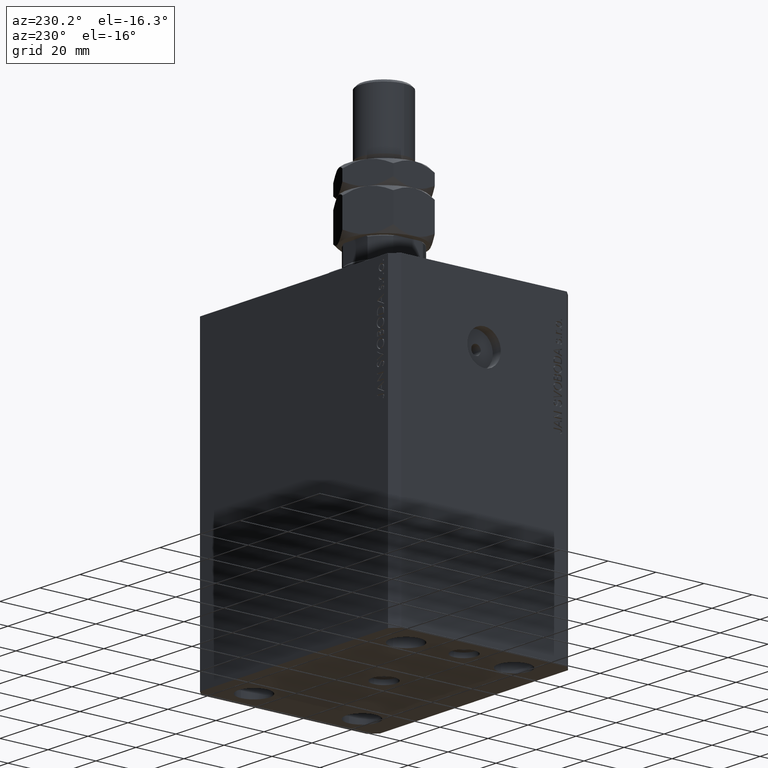
[diagram: clean part render]
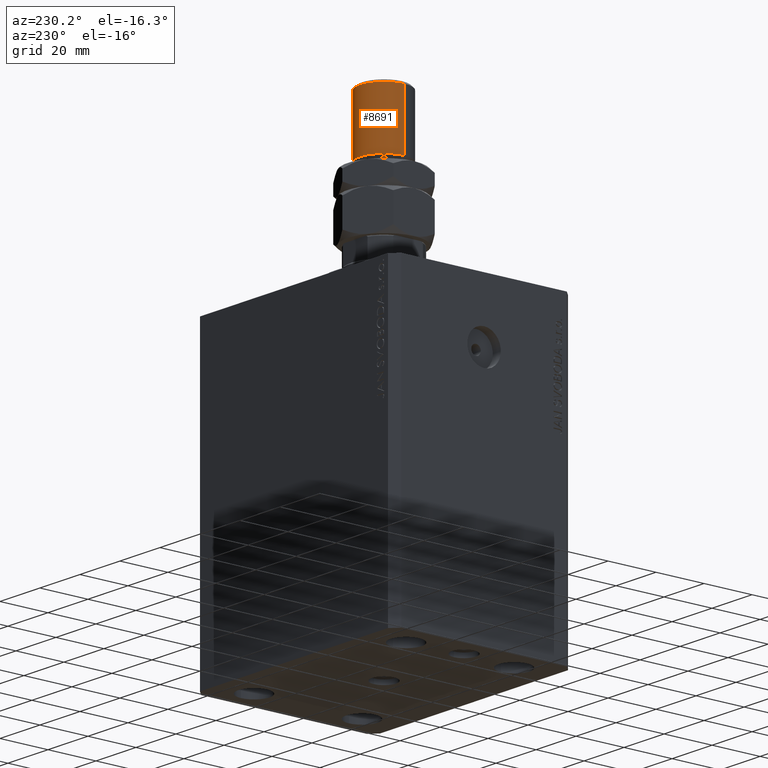
[diagram: same view with one face highlighted and labeled with its STEP entity id]
A machine part, auxiliary view. The second image highlights one B-rep face of the part: STEP entity #8691.
In plain terms, the highlighted cylindrical surface (edge-blend (fillet) strip) has radius 10 mm, axis along (-0, -0, -1).
Its self-contained STEP definition (entity closure, byte-faithful):
#545 = AXIS2_PLACEMENT_3D ( 'NONE', #24249, #6267, #28004 ) ;
#720 = DIRECTION ( 'NONE',  ( -1.000000000000000000, 0.000000000000000000, 0.000000000000000000 ) ) ;
#1512 = VERTEX_POINT ( 'NONE', #25639 ) ;
#3750 = CYLINDRICAL_SURFACE ( 'NONE', #31206, 10.00000000000000000 ) ;
#4906 = VERTEX_POINT ( 'NONE', #8957 ) ;
#5207 = EDGE_CURVE ( 'NONE', #30496, #1512, #37146, .T. ) ;
#6116 = EDGE_CURVE ( 'NONE', #1512, #41125, #23592, .T. ) ;
#6267 = DIRECTION ( 'NONE',  ( 0.000000000000000000, 0.000000000000000000, -1.000000000000000000 ) ) ;
#6498 = DIRECTION ( 'NONE',  ( -0.000000000000000000, -0.000000000000000000, 1.000000000000000000 ) ) ;
#7094 = AXIS2_PLACEMENT_3D ( 'NONE', #24255, #6498, #32615 ) ;
#8691 = ADVANCED_FACE ( 'NONE', ( #43221 ), #3750, .T. ) ;
#8957 = CARTESIAN_POINT ( 'NONE',  ( -10.00000000000000000, 0.000000000000000000, 28.00000000000002487 ) ) ;
#10069 = CARTESIAN_POINT ( 'NONE',  ( -10.00000000000000000, 0.000000000000000000, 52.00000000000004974 ) ) ;
#10195 = CARTESIAN_POINT ( 'NONE',  ( 10.00000000000000000, 1.224646799147353059E-15, 28.00000000000002487 ) ) ;
#10976 = ORIENTED_EDGE ( 'NONE', *, *, #27288, .T. ) ;
#13227 = VECTOR ( 'NONE', #41082, 1000.000000000000000 ) ;
#15134 = DIRECTION ( 'NONE',  ( -0.000000000000000000, -0.000000000000000000, -1.000000000000000000 ) ) ;
#15364 = CARTESIAN_POINT ( 'NONE',  ( -10.00000000000000000, 0.000000000000000000, 53.00000000000000711 ) ) ;
#16369 = ORIENTED_EDGE ( 'NONE', *, *, #6116, .T. ) ;
#16588 = CARTESIAN_POINT ( 'NONE',  ( 10.00000000000000000, 1.224646799147353059E-15, 53.00000000000000711 ) ) ;
#18887 = LINE ( 'NONE', #15364, #19012 ) ;
#19012 = VECTOR ( 'NONE', #15134, 1000.000000000000000 ) ;
#21986 = DIRECTION ( 'NONE',  ( -0.000000000000000000, -0.000000000000000000, -1.000000000000000000 ) ) ;
#23592 = LINE ( 'NONE', #16588, #13227 ) ;
#24249 = CARTESIAN_POINT ( 'NONE',  ( 0.000000000000000000, 0.000000000000000000, 52.00000000000004974 ) ) ;
#24255 = CARTESIAN_POINT ( 'NONE',  ( 0.000000000000000000, 0.000000000000000000, 28.00000000000002487 ) ) ;
#24509 = ORIENTED_EDGE ( 'NONE', *, *, #5207, .T. ) ;
#24813 = CARTESIAN_POINT ( 'NONE',  ( 0.000000000000000000, 0.000000000000000000, 53.00000000000000711 ) ) ;
#25639 = CARTESIAN_POINT ( 'NONE',  ( 10.00000000000000000, 1.224646799147353059E-15, 52.00000000000004974 ) ) ;
#26158 = EDGE_CURVE ( 'NONE', #30496, #4906, #18887, .T. ) ;
#27288 = EDGE_CURVE ( 'NONE', #41125, #4906, #45111, .T. ) ;
#28004 = DIRECTION ( 'NONE',  ( 1.000000000000000000, 0.000000000000000000, 0.000000000000000000 ) ) ;
#30496 = VERTEX_POINT ( 'NONE', #10069 ) ;
#31206 = AXIS2_PLACEMENT_3D ( 'NONE', #24813, #21986, #720 ) ;
#31301 = EDGE_LOOP ( 'NONE', ( #24509, #16369, #10976, #35424 ) ) ;
#32615 = DIRECTION ( 'NONE',  ( 1.000000000000000000, 0.000000000000000000, 0.000000000000000000 ) ) ;
#35424 = ORIENTED_EDGE ( 'NONE', *, *, #26158, .F. ) ;
#37146 = CIRCLE ( 'NONE', #545, 10.00000000000000000 ) ;
#41082 = DIRECTION ( 'NONE',  ( -0.000000000000000000, -0.000000000000000000, -1.000000000000000000 ) ) ;
#41125 = VERTEX_POINT ( 'NONE', #10195 ) ;
#43221 = FACE_OUTER_BOUND ( 'NONE', #31301, .T. ) ;
#45111 = CIRCLE ( 'NONE', #7094, 10.00000000000000000 ) ;